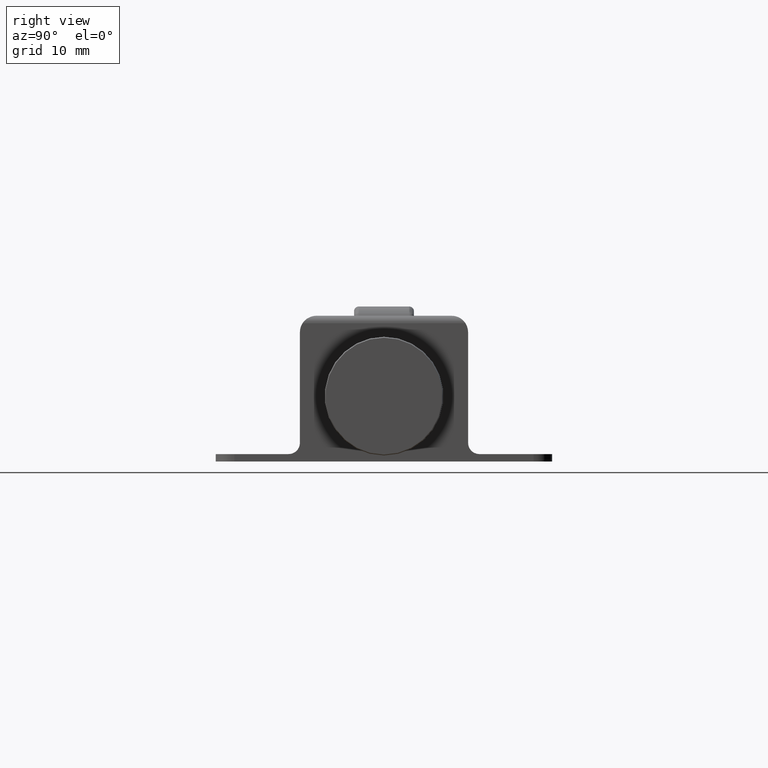
[diagram: clean part render]
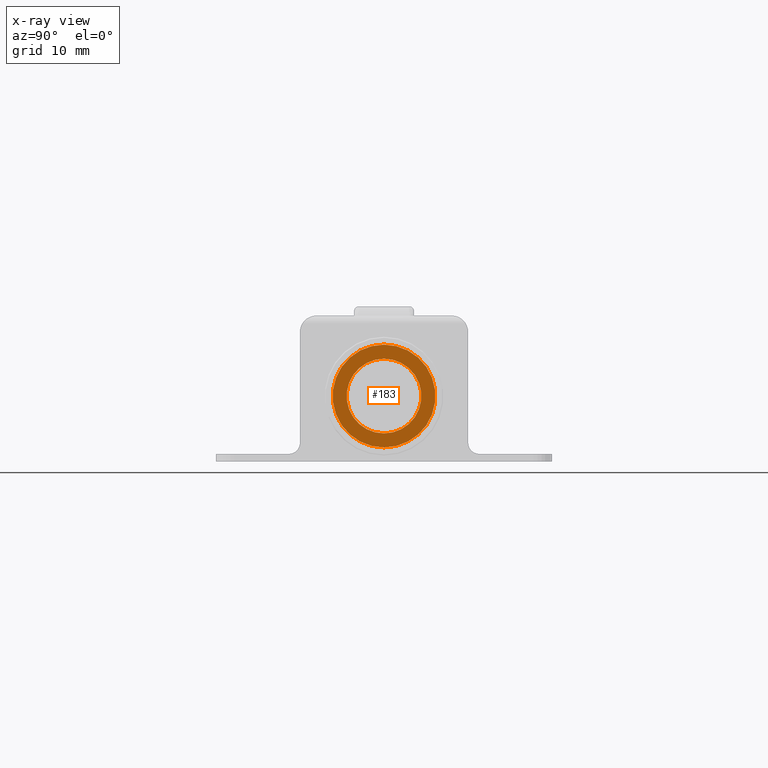
[diagram: x-ray — body ghosted, one internal face saturated and labeled with its STEP entity id]
A machine part, right view, then the same camera in x-ray: the body is ghosted and one INTERNAL B-rep face — a face not visible from any outside direction — is saturated and labeled: STEP entity #183.
In plain terms, the highlighted planar face has unit normal (1, 0, 0).
Its self-contained STEP definition (entity closure, byte-faithful):
#183=ADVANCED_FACE('',(#932,#933),#931,.T.);
#931=PLANE('',#1555);
#932=FACE_OUTER_BOUND('',#1556,.T.);
#933=FACE_BOUND('',#1557,.T.);
#1552=CARTESIAN_POINT('',(3.17000000000E+01,-1.14315353300E+01,1.33500000000E+01));
#1553=DIRECTION('',(1.00000000000E+00,0.00000000000E+00,0.00000000000E+00));
#1554=DIRECTION('',(0.00000000000E+00,0.00000000000E+00,-1.00000000000E+00));
#1555=AXIS2_PLACEMENT_3D('',#1552,#1553,#1554);
#1556=EDGE_LOOP('',(#2062,#2063));
#1557=EDGE_LOOP('',(#2064,#2065));
#2062=ORIENTED_EDGE('',*,*,#2333,.F.);
#2063=ORIENTED_EDGE('',*,*,#2334,.F.);
#2064=ORIENTED_EDGE('',*,*,#2335,.T.);
#2065=ORIENTED_EDGE('',*,*,#2336,.T.);
#2333=EDGE_CURVE('',#3641,#3642,#3643,.T.);
#2334=EDGE_CURVE('',#3642,#3641,#3649,.T.);
#2335=EDGE_CURVE('',#3655,#3656,#3657,.T.);
#2336=EDGE_CURVE('',#3656,#3655,#3663,.T.);
#3641=VERTEX_POINT('',#4670);
#3642=VERTEX_POINT('',#4671);
#3643=CIRCLE('',#4675,5.50000000000E+00);
#3649=CIRCLE('',#4679,5.50000000000E+00);
#3655=VERTEX_POINT('',#4680);
#3656=VERTEX_POINT('',#4681);
#3657=CIRCLE('',#4685,4.00000000000E+00);
#3663=CIRCLE('',#4689,4.00000000000E+00);
#4670=CARTESIAN_POINT('',(3.17000000000E+01,2.96059473233E-16,7.00000000000E-01));
#4671=CARTESIAN_POINT('',(3.17000000000E+01,0.00000000000E+00,1.17000000000E+01));
#4672=CARTESIAN_POINT('',(3.17000000000E+01,0.00000000000E+00,6.20000000000E+00));
#4673=DIRECTION('',(-1.00000000000E+00,0.00000000000E+00,0.00000000000E+00));
#4674=DIRECTION('',(0.00000000000E+00,-1.22460635382E-16,1.00000000000E+00));
#4675=AXIS2_PLACEMENT_3D('',#4672,#4673,#4674);
#4676=CARTESIAN_POINT('',(3.17000000000E+01,0.00000000000E+00,6.20000000000E+00));
#4677=DIRECTION('',(-1.00000000000E+00,0.00000000000E+00,0.00000000000E+00));
#4678=DIRECTION('',(0.00000000000E+00,-1.22460635382E-16,1.00000000000E+00));
#4679=AXIS2_PLACEMENT_3D('',#4676,#4677,#4678);
#4680=CARTESIAN_POINT('',(3.17000000000E+01,0.00000000000E+00,1.02000000000E+01));
#4681=CARTESIAN_POINT('',(3.17000000000E+01,4.44089209850E-16,2.20000000000E+00));
#4682=CARTESIAN_POINT('',(3.17000000000E+01,0.00000000000E+00,6.20000000000E+00));
#4683=DIRECTION('',(-1.00000000000E+00,0.00000000000E+00,0.00000000000E+00));
#4684=DIRECTION('',(0.00000000000E+00,-1.22460635382E-16,1.00000000000E+00));
#4685=AXIS2_PLACEMENT_3D('',#4682,#4683,#4684);
#4686=CARTESIAN_POINT('',(3.17000000000E+01,0.00000000000E+00,6.20000000000E+00));
#4687=DIRECTION('',(-1.00000000000E+00,0.00000000000E+00,0.00000000000E+00));
#4688=DIRECTION('',(0.00000000000E+00,-1.22460635382E-16,1.00000000000E+00));
#4689=AXIS2_PLACEMENT_3D('',#4686,#4687,#4688);